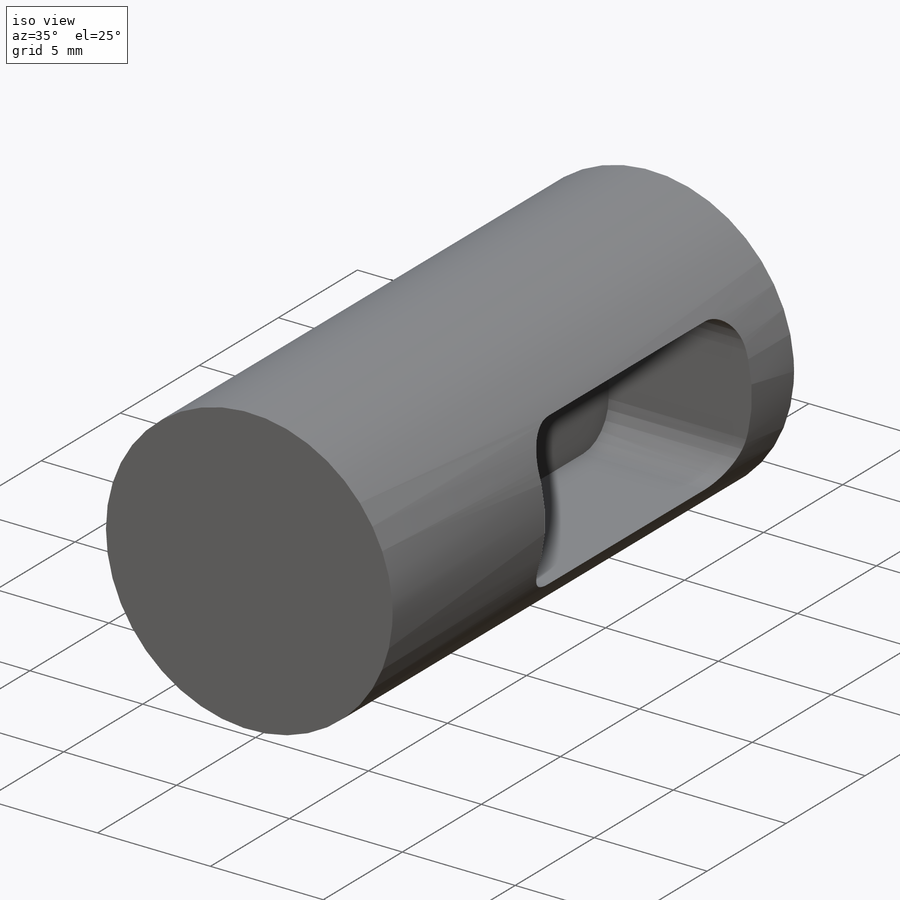
[diagram: iso view]
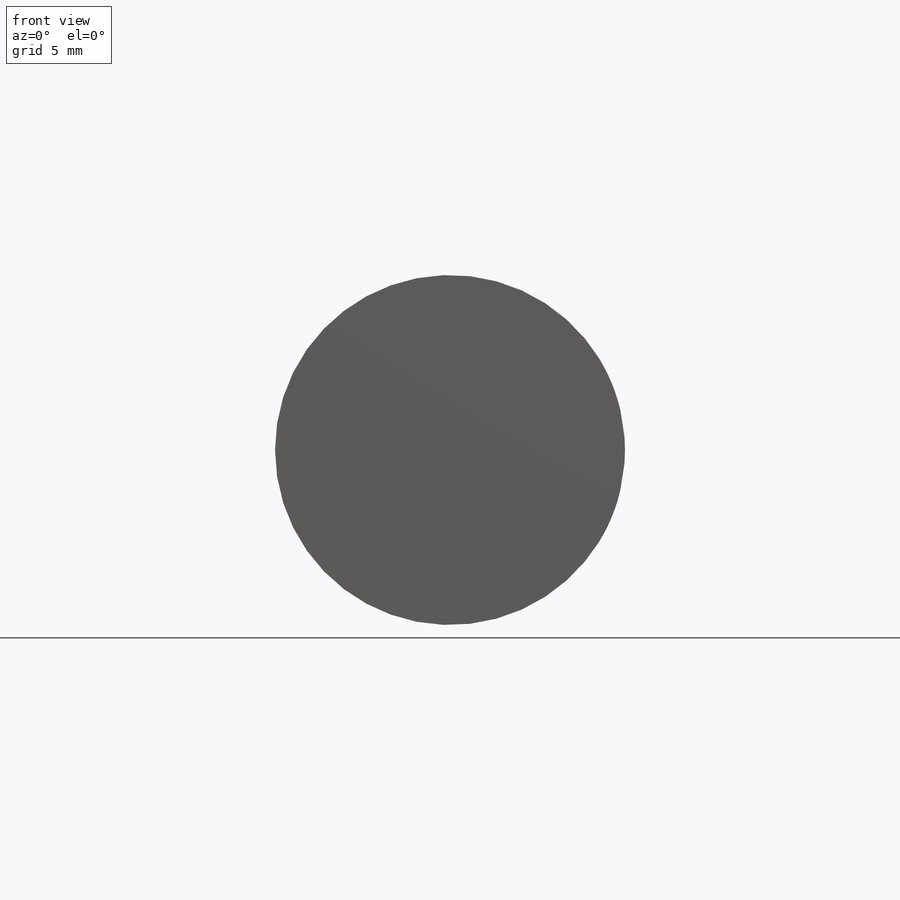
[diagram: front view]
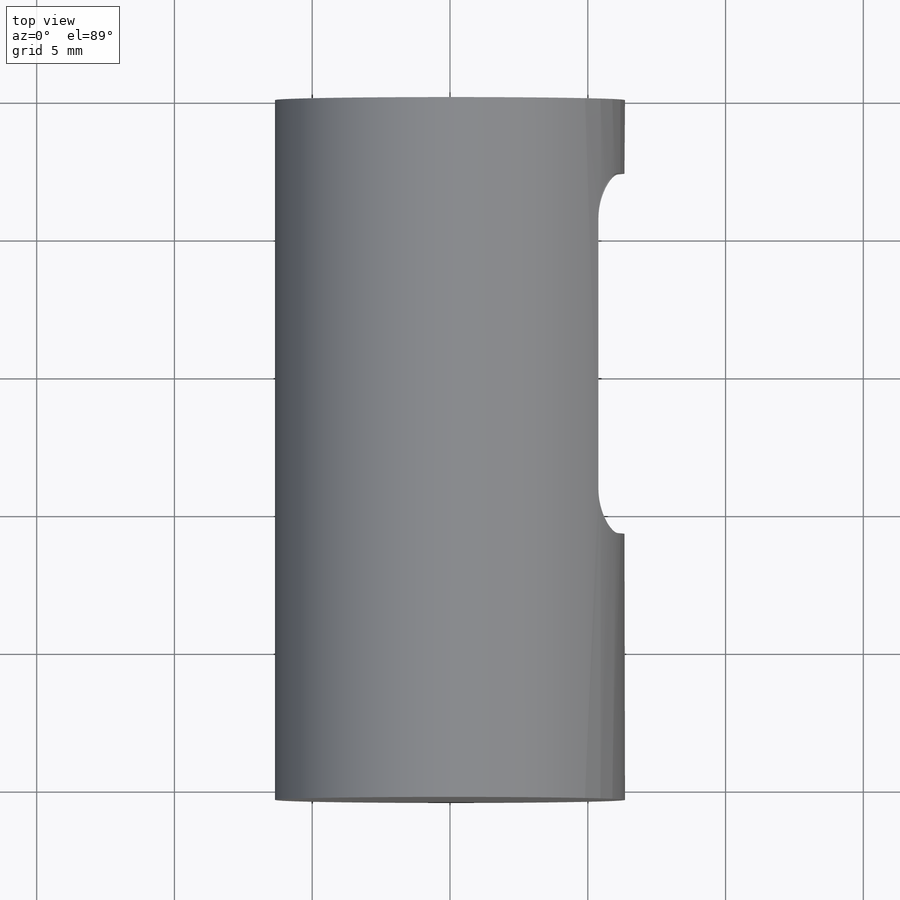
[diagram: top view]
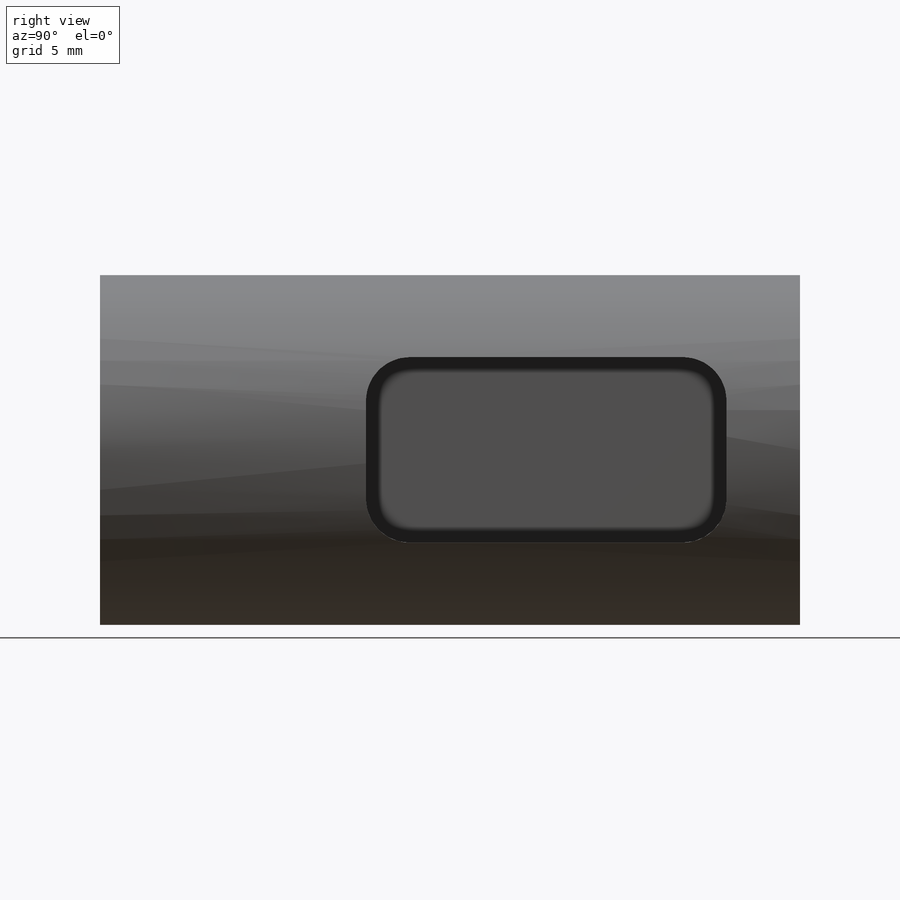
[diagram: right view]
SOLIDWORKS PART (.sldprt)
format: sldprt  version: not decoded by parser v0  size: 191,488 bytes
history: native  units: mm
features: sketch x3, material x1, extrude x1, plane x1, cut_extrude x1, fillet x1 (+13 scaffold rows collapsed)
feature tree (21):
  scaffold x13  (default folders/planes/origin — collapsed)
  material  "6061-T6 (SS)"
  sketch  "Sketch1"  dims[D1=12.7mm]
  extrude  "Boss-Extrude1"  Depth=25.4mm
  sketch  "Sketch2"
  plane  "Plane1"
  sketch  "Sketch4"  dims[D1=13.081mm D2=6.731mm D3=9.652mm]
  cut_extrude  "Cut-Extrude1"  Depth=6.35mm
  fillet  "Fillet1"  Radius=1.5875mm
decode coverage: 5 of 6 modeling features carry decoded parameters
note: suppression state not decoded; provenance and decode notes live in map.json
